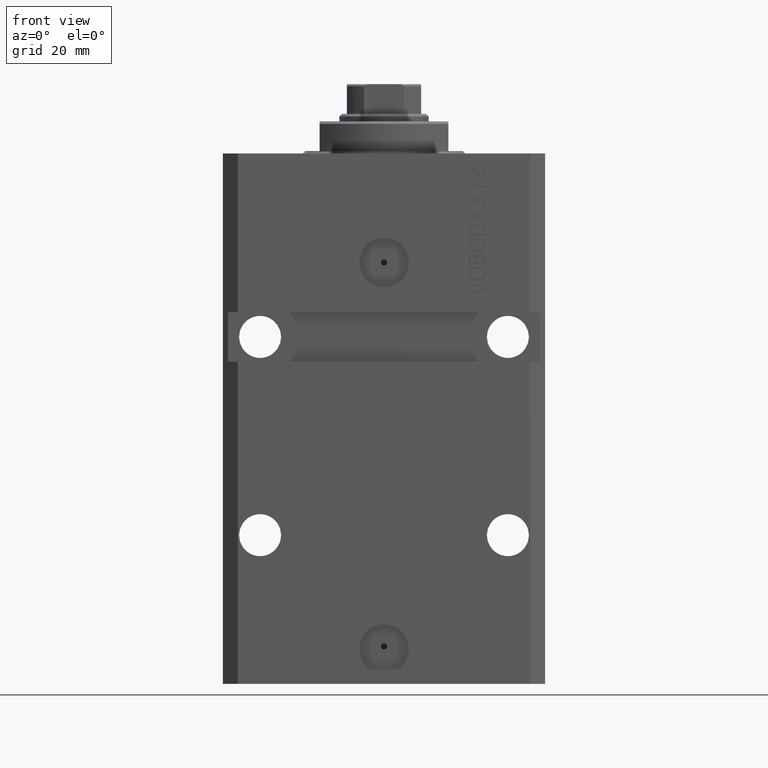
[diagram: clean part render]
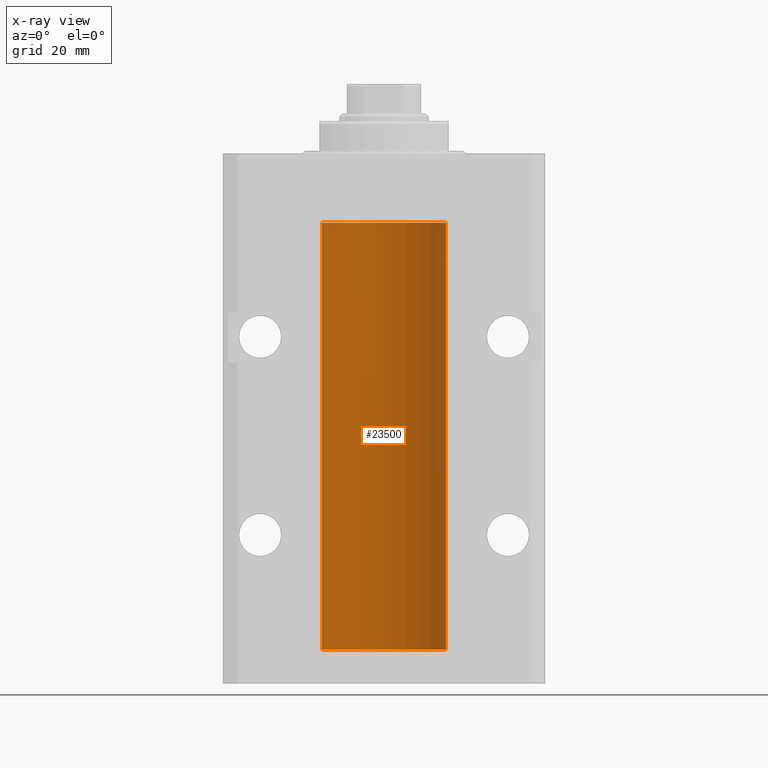
[diagram: x-ray — body ghosted, one internal face saturated and labeled with its STEP entity id]
A machine part, front view, then the same camera in x-ray: the body is ghosted and one INTERNAL B-rep face — a face not visible from any outside direction — is saturated and labeled: STEP entity #23500.
In plain terms, the highlighted cylindrical surface (partial cylindrical patch) has radius 12.5 mm, axis along (0, 0, 1).
Its self-contained STEP definition (entity closure, byte-faithful):
#49 = EDGE_CURVE ( 'NONE', #44454, #8407, #19213, .T. ) ;
#312 = DIRECTION ( 'NONE',  ( 1.000000000000000000, 0.000000000000000000, 0.000000000000000000 ) ) ;
#524 = AXIS2_PLACEMENT_3D ( 'NONE', #1780, #5872, #20593 ) ;
#1436 = B_SPLINE_CURVE_WITH_KNOTS ( 'NONE', 3,
 ( #26787, #5064, #11840, #44664, #22937, #33551, #16151, #45383 ),
 .UNSPECIFIED., .F., .F.,
 ( 4, 2, 2, 4 ),
 ( 1.784246692340212412E-18, 0.0002443481056285665750, 0.0004886962112571313068, 0.0009773924225142606621 ),
 .UNSPECIFIED. ) ;
#1780 = CARTESIAN_POINT ( 'NONE',  ( 0.000000000000000000, 0.000000000000000000, -100.0999999999999943 ) ) ;
#2051 = CARTESIAN_POINT ( 'NONE',  ( 12.48436522214888100, 0.6249999999996762590, -21.91847339462350774 ) ) ;
#2583 = DIRECTION ( 'NONE',  ( -0.000000000000000000, -0.000000000000000000, 1.000000000000000000 ) ) ;
#3122 = CARTESIAN_POINT ( 'NONE',  ( 12.50000000000017941, 3.868073689162038701E-13, -94.37499999999640465 ) ) ;
#3483 = VECTOR ( 'NONE', #17392, 1000.000000000000000 ) ;
#3622 = LINE ( 'NONE', #40043, #41106 ) ;
#3864 = CARTESIAN_POINT ( 'NONE',  ( 12.48520578595314845, 0.6087855079133740466, -94.83656717509346379 ) ) ;
#3878 = CARTESIAN_POINT ( 'NONE',  ( 12.50000000000000000, -1.470318446642941360E-15, -22.62500000000000000 ) ) ;
#4791 = ORIENTED_EDGE ( 'NONE', *, *, #28410, .T. ) ;
#5064 = CARTESIAN_POINT ( 'NONE',  ( 12.49999999999999822, 0.08262306818362624705, -95.62499999999998579 ) ) ;
#5124 = VERTEX_POINT ( 'NONE', #42347 ) ;
#5872 = DIRECTION ( 'NONE',  ( 0.000000000000000000, 0.000000000000000000, 1.000000000000000000 ) ) ;
#7056 = EDGE_CURVE ( 'NONE', #19803, #29353, #1436, .T. ) ;
#7101 = CARTESIAN_POINT ( 'NONE',  ( 12.49999999999999112, 0.1631389616600879555, -21.37500000000019185 ) ) ;
#7966 = CARTESIAN_POINT ( 'NONE',  ( 12.49421963472024366, 0.3844519291903583103, -22.49947303647044805 ) ) ;
#8407 = VERTEX_POINT ( 'NONE', #23054 ) ;
#8862 = CARTESIAN_POINT ( 'NONE',  ( 12.48436522214846889, 0.6250000000078781426, -21.99999999999923261 ) ) ;
#8901 = CARTESIAN_POINT ( 'NONE',  ( -12.50000000000000000, 1.530808498934191521E-15, -13.99999999999999822 ) ) ;
#8972 = EDGE_CURVE ( 'NONE', #44749, #19803, #20780, .T. ) ;
#9132 = DIRECTION ( 'NONE',  ( 1.000000000000000000, 0.000000000000000000, 0.000000000000000000 ) ) ;
#10630 = CARTESIAN_POINT ( 'NONE',  ( 12.49012055744648997, 0.5002956126656082914, -94.61641710202405875 ) ) ;
#10654 = LINE ( 'NONE', #46850, #3483 ) ;
#10988 = CARTESIAN_POINT ( 'NONE',  ( 12.49631206032075958, 0.3252904079142808214, -21.44139700214925526 ) ) ;
#11840 = CARTESIAN_POINT ( 'NONE',  ( 12.49915742890631876, 0.1636982395582385896, -95.60872397847028026 ) ) ;
#12229 = ORIENTED_EDGE ( 'NONE', *, *, #42459, .F. ) ;
#13130 = CARTESIAN_POINT ( 'NONE',  ( 12.50000000000000000, 0.000000000000000000, -100.0999999999999943 ) ) ;
#13692 = EDGE_CURVE ( 'NONE', #29353, #47464, #38371, .T. ) ;
#13983 = VECTOR ( 'NONE', #17397, 1000.000000000000000 ) ;
#14589 = CARTESIAN_POINT ( 'NONE',  ( 12.49012055744648997, 0.5002956126655976332, -21.61641710202404454 ) ) ;
#15692 = CARTESIAN_POINT ( 'NONE',  ( 12.48436522214846889, 0.6250000000078781426, -21.99999999999923261 ) ) ;
#16151 = CARTESIAN_POINT ( 'NONE',  ( 12.48436522214885969, 0.6250000000001505462, -95.16312747540308692 ) ) ;
#17392 = DIRECTION ( 'NONE',  ( -0.000000000000000000, -0.000000000000000000, 1.000000000000000000 ) ) ;
#17397 = DIRECTION ( 'NONE',  ( -0.000000000000000000, -0.000000000000000000, 1.000000000000000000 ) ) ;
#19126 = CARTESIAN_POINT ( 'NONE',  ( -12.50000000000000000, 1.530808498934191521E-15, -100.0999999999999943 ) ) ;
#19200 = EDGE_CURVE ( 'NONE', #26805, #23379, #25787, .T. ) ;
#19213 = B_SPLINE_CURVE_WITH_KNOTS ( 'NONE', 3,
 ( #20395, #2051, #31492, #42599, #14589, #10988, #7101, #33646 ),
 .UNSPECIFIED., .F., .F.,
 ( 4, 2, 2, 4 ),
 ( 0.0009773924225142506875, 0.001221629287363794770, 0.001465866152213338852, 0.001954339881912434389 ),
 .UNSPECIFIED. ) ;
#19305 = CARTESIAN_POINT ( 'NONE',  ( 12.49625698805480667, 0.3151108292486967666, -22.54593695688170385 ) ) ;
#19548 = CARTESIAN_POINT ( 'NONE',  ( 12.48809900631782099, 0.5573988467445639694, -22.32640147935474317 ) ) ;
#19803 = VERTEX_POINT ( 'NONE', #22638 ) ;
#20395 = CARTESIAN_POINT ( 'NONE',  ( 12.48436522214846889, 0.6250000000078781426, -21.99999999999923261 ) ) ;
#20593 = DIRECTION ( 'NONE',  ( 1.000000000000000000, 0.000000000000000000, 0.000000000000000000 ) ) ;
#20780 = LINE ( 'NONE', #24645, #13983 ) ;
#21121 = ORIENTED_EDGE ( 'NONE', *, *, #7056, .T. ) ;
#21344 = CARTESIAN_POINT ( 'NONE',  ( 12.50000000000017941, 3.868073689162038701E-13, -94.37499999999640465 ) ) ;
#21377 = ORIENTED_EDGE ( 'NONE', *, *, #25017, .F. ) ;
#21462 = CARTESIAN_POINT ( 'NONE',  ( 12.48436522214846711, 0.6250000000078848039, -94.99999999999923261 ) ) ;
#21916 = AXIS2_PLACEMENT_3D ( 'NONE', #29760, #40853, #312 ) ;
#22638 = CARTESIAN_POINT ( 'NONE',  ( 12.50000000000000000, -1.836039810331332019E-15, -95.62500000000000000 ) ) ;
#22937 = CARTESIAN_POINT ( 'NONE',  ( 12.49421963472024721, 0.3844519291903572555, -95.49947303647047647 ) ) ;
#23054 = CARTESIAN_POINT ( 'NONE',  ( 12.50000000000017941, 3.868073565084946818E-13, -21.37499999999641176 ) ) ;
#23379 = VERTEX_POINT ( 'NONE', #8901 ) ;
#23500 = ADVANCED_FACE ( 'NONE', ( #31092 ), #39260, .F. ) ;
#23787 = ORIENTED_EDGE ( 'NONE', *, *, #38603, .T. ) ;
#24645 = CARTESIAN_POINT ( 'NONE',  ( 12.50000000000000000, 0.000000000000000000, -100.0999999999999943 ) ) ;
#25017 = EDGE_CURVE ( 'NONE', #44749, #25314, #42141, .T. ) ;
#25092 = CARTESIAN_POINT ( 'NONE',  ( 12.48436522214888100, 0.6249999999996834754, -94.91847339462351840 ) ) ;
#25314 = VERTEX_POINT ( 'NONE', #19126 ) ;
#25520 = EDGE_CURVE ( 'NONE', #5124, #44454, #35656, .T. ) ;
#25787 = CIRCLE ( 'NONE', #21916, 12.50000000000000000 ) ;
#25919 = AXIS2_PLACEMENT_3D ( 'NONE', #35651, #2583, #9132 ) ;
#25943 = ORIENTED_EDGE ( 'NONE', *, *, #25520, .T. ) ;
#26787 = CARTESIAN_POINT ( 'NONE',  ( 12.50000000000000000, -1.836039810331332019E-15, -95.62500000000000000 ) ) ;
#26805 = VERTEX_POINT ( 'NONE', #36079 ) ;
#27017 = CARTESIAN_POINT ( 'NONE',  ( 12.49915742890631876, 0.1636982395582437522, -22.60872397847025539 ) ) ;
#27498 = EDGE_LOOP ( 'NONE', ( #12229, #21377, #47098, #21121, #45362, #23787, #25943, #34896, #4791, #39965 ) ) ;
#28410 = EDGE_CURVE ( 'NONE', #8407, #26805, #34857, .T. ) ;
#29353 = VERTEX_POINT ( 'NONE', #35117 ) ;
#29760 = CARTESIAN_POINT ( 'NONE',  ( 0.000000000000000000, 0.000000000000000000, -13.99999999999999822 ) ) ;
#30915 = VECTOR ( 'NONE', #38255, 1000.000000000000000 ) ;
#31092 = FACE_OUTER_BOUND ( 'NONE', #27498, .T. ) ;
#31492 = CARTESIAN_POINT ( 'NONE',  ( 12.48520578595314845, 0.6087855079133684955, -21.83656717509346024 ) ) ;
#33551 = CARTESIAN_POINT ( 'NONE',  ( 12.48809900631782099, 0.5573988467445673001, -95.32640147935475738 ) ) ;
#33553 = CARTESIAN_POINT ( 'NONE',  ( 12.48436522214885969, 0.6250000000001448841, -22.16312747540307271 ) ) ;
#33646 = CARTESIAN_POINT ( 'NONE',  ( 12.50000000000017941, 3.868073565084946818E-13, -21.37499999999641176 ) ) ;
#34857 = LINE ( 'NONE', #13130, #30915 ) ;
#34896 = ORIENTED_EDGE ( 'NONE', *, *, #49, .T. ) ;
#35117 = CARTESIAN_POINT ( 'NONE',  ( 12.48436522214846711, 0.6250000000078848039, -94.99999999999923261 ) ) ;
#35651 = CARTESIAN_POINT ( 'NONE',  ( 0.000000000000000000, 0.000000000000000000, -100.0999999999999943 ) ) ;
#35656 = B_SPLINE_CURVE_WITH_KNOTS ( 'NONE', 3,
 ( #3878, #41033, #27017, #19305, #7966, #19548, #33553, #15692 ),
 .UNSPECIFIED., .F., .F.,
 ( 4, 2, 2, 4 ),
 ( 2.576359803311334014E-18, 0.0002443481056285645150, 0.0004886962112571264279, 0.0009773924225142506875 ),
 .UNSPECIFIED. ) ;
#36079 = CARTESIAN_POINT ( 'NONE',  ( 12.50000000000000000, 0.000000000000000000, -13.99999999999999822 ) ) ;
#36184 = CARTESIAN_POINT ( 'NONE',  ( 12.49999999999999822, 0.1631389616600901760, -94.37500000000024158 ) ) ;
#38255 = DIRECTION ( 'NONE',  ( -0.000000000000000000, -0.000000000000000000, 1.000000000000000000 ) ) ;
#38371 = B_SPLINE_CURVE_WITH_KNOTS ( 'NONE', 3,
 ( #21462, #25092, #3864, #47299, #10630, #39803, #36184, #3122 ),
 .UNSPECIFIED., .F., .F.,
 ( 4, 2, 2, 4 ),
 ( 0.0009773924225142606621, 0.001221629287363811033, 0.001465866152213361404, 0.001954339881912461711 ),
 .UNSPECIFIED. ) ;
#38603 = EDGE_CURVE ( 'NONE', #47464, #5124, #3622, .T. ) ;
#39260 = CYLINDRICAL_SURFACE ( 'NONE', #25919, 12.50000000000000000 ) ;
#39803 = CARTESIAN_POINT ( 'NONE',  ( 12.49631206032076136, 0.3252904079142934779, -94.44139700214928723 ) ) ;
#39965 = ORIENTED_EDGE ( 'NONE', *, *, #19200, .T. ) ;
#40043 = CARTESIAN_POINT ( 'NONE',  ( 12.50000000000000000, 0.000000000000000000, -100.0999999999999943 ) ) ;
#40853 = DIRECTION ( 'NONE',  ( 0.000000000000000000, 0.000000000000000000, 1.000000000000000000 ) ) ;
#41033 = CARTESIAN_POINT ( 'NONE',  ( 12.49999999999999822, 0.08262306818362555316, -22.62499999999997513 ) ) ;
#41106 = VECTOR ( 'NONE', #43197, 1000.000000000000000 ) ;
#42141 = CIRCLE ( 'NONE', #524, 12.50000000000000000 ) ;
#42347 = CARTESIAN_POINT ( 'NONE',  ( 12.50000000000000000, -1.470318446642941360E-15, -22.62500000000000000 ) ) ;
#42459 = EDGE_CURVE ( 'NONE', #25314, #23379, #10654, .T. ) ;
#42599 = CARTESIAN_POINT ( 'NONE',  ( 12.48810305280568222, 0.5461368461738448365, -21.68525466142676805 ) ) ;
#43197 = DIRECTION ( 'NONE',  ( -0.000000000000000000, -0.000000000000000000, 1.000000000000000000 ) ) ;
#43835 = CARTESIAN_POINT ( 'NONE',  ( 12.50000000000000000, 0.000000000000000000, -100.0999999999999943 ) ) ;
#44454 = VERTEX_POINT ( 'NONE', #8862 ) ;
#44664 = CARTESIAN_POINT ( 'NONE',  ( 12.49625698805481022, 0.3151108292486944906, -95.54593695688171806 ) ) ;
#44749 = VERTEX_POINT ( 'NONE', #43835 ) ;
#45362 = ORIENTED_EDGE ( 'NONE', *, *, #13692, .T. ) ;
#45383 = CARTESIAN_POINT ( 'NONE',  ( 12.48436522214846711, 0.6250000000078848039, -94.99999999999923261 ) ) ;
#46850 = CARTESIAN_POINT ( 'NONE',  ( -12.50000000000000000, 1.530808498934191521E-15, -100.0999999999999943 ) ) ;
#47098 = ORIENTED_EDGE ( 'NONE', *, *, #8972, .T. ) ;
#47299 = CARTESIAN_POINT ( 'NONE',  ( 12.48810305280568222, 0.5461368461738485003, -94.68525466142676805 ) ) ;
#47464 = VERTEX_POINT ( 'NONE', #21344 ) ;